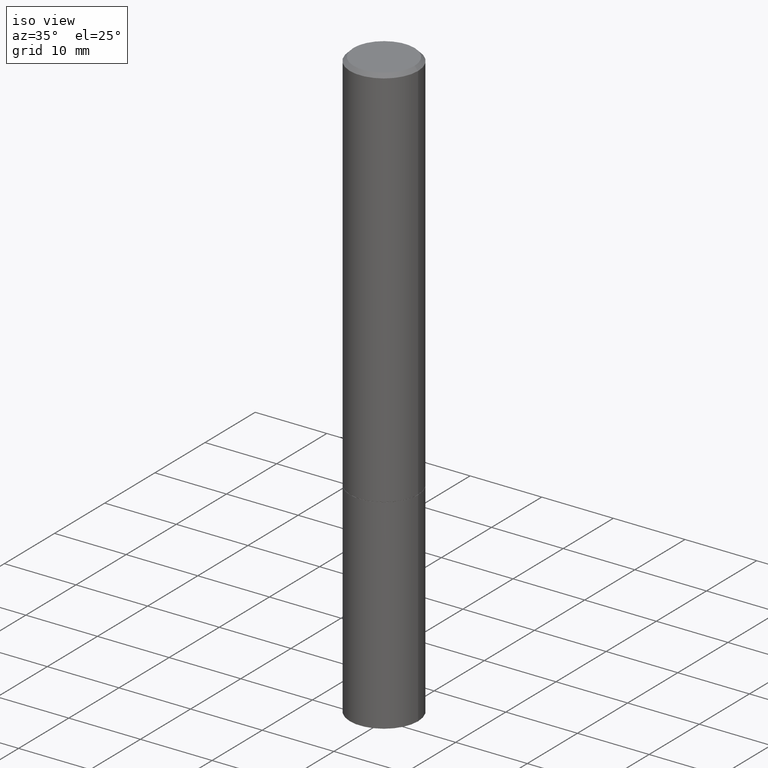
[diagram: clean part render]
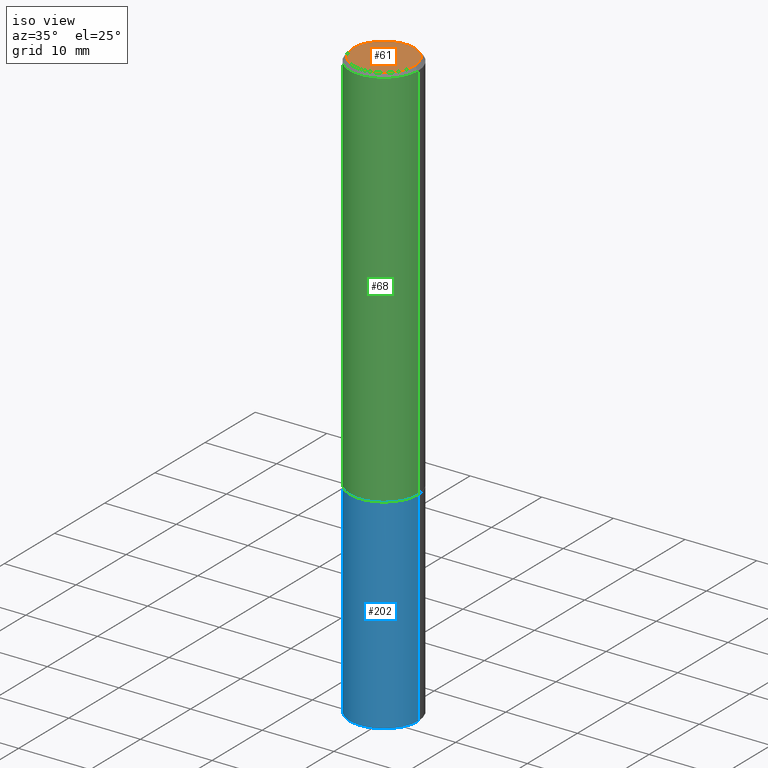
[diagram: same view with three faces highlighted in distinct colors, each labeled with its STEP entity id]
A machine part, iso view with three faces highlighted in distinct colors.
Their STEP definitions:

[orange] entity #61 — the highlighted planar face has unit normal (0, -0, -1).
#15 = VERTEX_POINT ( 'NONE', #319 ) ;
#19 = ORIENTED_EDGE ( 'NONE', *, *, #229, .T. ) ;
#40 = AXIS2_PLACEMENT_3D ( 'NONE', #345, #321, #323 ) ;
#48 = CARTESIAN_POINT ( 'NONE',  ( -1.043851414335219820E-46, 1.490343170380447200E-32, 4.268512490100411279E-18 ) ) ;
#56 = CIRCLE ( 'NONE', #324, 0.1674999999999997602 ) ;
#61 = ADVANCED_FACE ( 'NONE', ( #206 ), #77, .F. ) ;
#77 = PLANE ( 'NONE',  #40 ) ;
#89 = AXIS2_PLACEMENT_3D ( 'NONE', #334, #241, #278 ) ;
#107 = EDGE_CURVE ( 'NONE', #194, #15, #196, .T. ) ;
#123 = DIRECTION ( 'NONE',  ( 1.000000000000000000, -6.982962677686265922E-15, 4.875936752492899929E-29 ) ) ;
#149 = ORIENTED_EDGE ( 'NONE', *, *, #107, .T. ) ;
#194 = VERTEX_POINT ( 'NONE', #311 ) ;
#196 = CIRCLE ( 'NONE', #89, 0.1674999999999997602 ) ;
#206 = FACE_OUTER_BOUND ( 'NONE', #330, .T. ) ;
#229 = EDGE_CURVE ( 'NONE', #15, #194, #56, .T. ) ;
#237 = DIRECTION ( 'NONE',  ( -2.445468806185136597E-29, 3.491481338843145583E-15, 1.000000000000000000 ) ) ;
#241 = DIRECTION ( 'NONE',  ( -2.445468806185136597E-29, 3.491481338843145583E-15, 1.000000000000000000 ) ) ;
#278 = DIRECTION ( 'NONE',  ( 1.000000000000000000, -6.982962677686265922E-15, 4.875936752492899929E-29 ) ) ;
#311 = CARTESIAN_POINT ( 'NONE',  ( 0.1674999999999997602, -1.252653207992876711E-15, 4.268512490108880748E-18 ) ) ;
#319 = CARTESIAN_POINT ( 'NONE',  ( -0.1674999999999997602, 1.204561061900878878E-15, 4.268512490092109750E-18 ) ) ;
#321 = DIRECTION ( 'NONE',  ( 2.438088387897960049E-29, -3.491481338843145188E-15, -1.000000000000000000 ) ) ;
#323 = DIRECTION ( 'NONE',  ( -1.000000000000000000, 6.982962677686265922E-15, -4.876176775795935793E-29 ) ) ;
#324 = AXIS2_PLACEMENT_3D ( 'NONE', #48, #237, #123 ) ;
#330 = EDGE_LOOP ( 'NONE', ( #19, #149 ) ) ;
#334 = CARTESIAN_POINT ( 'NONE',  ( -1.043851414335219820E-46, 1.490343170380447200E-32, 4.268512490100411279E-18 ) ) ;
#345 = CARTESIAN_POINT ( 'NONE',  ( 1.169646248512447820E-15, 0.1674999999999997602, -5.826888680111757675E-16 ) ) ;

[blue] entity #202 — the highlighted cylindrical surface (partial cylindrical patch) has radius 4.7625 mm, axis along (-0, 0, 1).
#1 = DIRECTION ( 'NONE',  ( -2.445468806185136597E-29, 3.491481338843145583E-15, 1.000000000000000000 ) ) ;
#8 = DIRECTION ( 'NONE',  ( 1.000000000000000000, -6.982962677686261189E-15, 0.000000000000000000 ) ) ;
#9 = EDGE_CURVE ( 'NONE', #21, #135, #232, .T. ) ;
#12 = CARTESIAN_POINT ( 'NONE',  ( 5.196621213143415268E-29, -7.419397845041683624E-15, -2.125000000000000000 ) ) ;
#13 = DIRECTION ( 'NONE',  ( -2.445468806185136877E-29, 3.491481338843145188E-15, 1.000000000000000000 ) ) ;
#17 = VERTEX_POINT ( 'NONE', #69 ) ;
#21 = VERTEX_POINT ( 'NONE', #120 ) ;
#28 = CARTESIAN_POINT ( 'NONE',  ( -0.1875000000000000278, -8.051088468590765387E-15, -3.250000000000000000 ) ) ;
#29 = AXIS2_PLACEMENT_3D ( 'NONE', #253, #1, #86 ) ;
#43 = LINE ( 'NONE', #147, #286 ) ;
#52 = ORIENTED_EDGE ( 'NONE', *, *, #74, .T. ) ;
#55 = CYLINDRICAL_SURFACE ( 'NONE', #29, 0.1875000000000000278 ) ;
#59 = DIRECTION ( 'NONE',  ( -2.445468806185136877E-29, 3.491481338843145188E-15, 1.000000000000000000 ) ) ;
#65 = DIRECTION ( 'NONE',  ( 1.000000000000000000, -6.982962677686266711E-15, 0.000000000000000000 ) ) ;
#69 = CARTESIAN_POINT ( 'NONE',  ( 0.1875000000000000278, -1.265661985330639786E-14, -3.250000000000000000 ) ) ;
#70 = CARTESIAN_POINT ( 'NONE',  ( 7.947773620101693940E-29, -1.134731435124022443E-14, -3.250000000000000000 ) ) ;
#74 = EDGE_CURVE ( 'NONE', #17, #135, #43, .T. ) ;
#82 = ORIENTED_EDGE ( 'NONE', *, *, #261, .T. ) ;
#86 = DIRECTION ( 'NONE',  ( 1.000000000000000000, -6.982962677686265922E-15, 4.876176775795935793E-29 ) ) ;
#120 = CARTESIAN_POINT ( 'NONE',  ( -0.1875000000000000278, -8.051088468590765387E-15, -2.125000000000000000 ) ) ;
#134 = VERTEX_POINT ( 'NONE', #28 ) ;
#135 = VERTEX_POINT ( 'NONE', #216 ) ;
#139 = FACE_OUTER_BOUND ( 'NONE', #272, .T. ) ;
#147 = CARTESIAN_POINT ( 'NONE',  ( 0.1875000000000000278, -1.309305502066175008E-15, 9.142831454617381013E-30 ) ) ;
#162 = AXIS2_PLACEMENT_3D ( 'NONE', #70, #291, #8 ) ;
#182 = AXIS2_PLACEMENT_3D ( 'NONE', #12, #208, #65 ) ;
#199 = CARTESIAN_POINT ( 'NONE',  ( -0.1875000000000000278, 1.332267629550188046E-15, -9.223003294227947991E-30 ) ) ;
#202 = ADVANCED_FACE ( 'NONE', ( #139 ), #55, .T. ) ;
#208 = DIRECTION ( 'NONE',  ( -2.445468806185136597E-29, 3.491481338843145583E-15, 1.000000000000000000 ) ) ;
#210 = EDGE_CURVE ( 'NONE', #134, #21, #223, .T. ) ;
#216 = CARTESIAN_POINT ( 'NONE',  ( 0.1875000000000000278, -8.728703347107858632E-15, -2.125000000000000000 ) ) ;
#219 = ORIENTED_EDGE ( 'NONE', *, *, #9, .F. ) ;
#223 = LINE ( 'NONE', #199, #343 ) ;
#232 = CIRCLE ( 'NONE', #182, 0.1875000000000000278 ) ;
#253 = CARTESIAN_POINT ( 'NONE',  ( 0.000000000000000000, 0.000000000000000000, 0.000000000000000000 ) ) ;
#261 = EDGE_CURVE ( 'NONE', #134, #17, #314, .T. ) ;
#272 = EDGE_LOOP ( 'NONE', ( #329, #82, #52, #219 ) ) ;
#286 = VECTOR ( 'NONE', #13, 39.37007874015748143 ) ;
#291 = DIRECTION ( 'NONE',  ( -2.445468806185136597E-29, 3.491481338843145583E-15, 1.000000000000000000 ) ) ;
#314 = CIRCLE ( 'NONE', #162, 0.1875000000000000278 ) ;
#329 = ORIENTED_EDGE ( 'NONE', *, *, #210, .F. ) ;
#343 = VECTOR ( 'NONE', #59, 39.37007874015748143 ) ;

[green] entity #68 — the highlighted cylindrical surface (partial cylindrical patch) has radius 4.7625 mm, axis along (-0, 0, 1).
#2 = CARTESIAN_POINT ( 'NONE',  ( 4.890937612370283668E-31, -6.982962677686305168E-17, -0.02000000000000004205 ) ) ;
#5 = CARTESIAN_POINT ( 'NONE',  ( 5.194175744337229665E-29, -7.415906363702840616E-15, -2.123999999999999666 ) ) ;
#23 = VERTEX_POINT ( 'NONE', #289 ) ;
#30 = CIRCLE ( 'NONE', #226, 0.1875000000000000278 ) ;
#33 = EDGE_CURVE ( 'NONE', #358, #243, #177, .T. ) ;
#36 = CYLINDRICAL_SURFACE ( 'NONE', #104, 0.1874999999999998890 ) ;
#39 = CARTESIAN_POINT ( 'NONE',  ( 0.1875000000000000278, -8.725211865769015625E-15, -2.123999999999999666 ) ) ;
#68 = ADVANCED_FACE ( 'NONE', ( #71 ), #36, .T. ) ;
#71 = FACE_OUTER_BOUND ( 'NONE', #80, .T. ) ;
#73 = DIRECTION ( 'NONE',  ( -2.445468806185136597E-29, 3.491481338843145583E-15, 1.000000000000000000 ) ) ;
#80 = EDGE_LOOP ( 'NONE', ( #305, #130, #190, #103 ) ) ;
#81 = AXIS2_PLACEMENT_3D ( 'NONE', #2, #341, #87 ) ;
#87 = DIRECTION ( 'NONE',  ( 1.000000000000000000, -6.982962677686265133E-15, 0.000000000000000000 ) ) ;
#103 = ORIENTED_EDGE ( 'NONE', *, *, #168, .F. ) ;
#104 = AXIS2_PLACEMENT_3D ( 'NONE', #292, #73, #293 ) ;
#127 = CARTESIAN_POINT ( 'NONE',  ( -0.1874999999999997502, 1.239475875289309935E-15, -0.02000000000000004205 ) ) ;
#130 = ORIENTED_EDGE ( 'NONE', *, *, #366, .T. ) ;
#138 = CARTESIAN_POINT ( 'NONE',  ( -0.1874999999999998890, 1.332267629550187060E-15, -9.223003294227942385E-30 ) ) ;
#145 = VECTOR ( 'NONE', #287, 39.37007874015748143 ) ;
#165 = EDGE_CURVE ( 'NONE', #23, #269, #273, .T. ) ;
#168 = EDGE_CURVE ( 'NONE', #269, #243, #279, .T. ) ;
#174 = CARTESIAN_POINT ( 'NONE',  ( 0.1874999999999998890, -1.309305502066174022E-15, 9.142831454617374006E-30 ) ) ;
#177 = LINE ( 'NONE', #174, #145 ) ;
#190 = ORIENTED_EDGE ( 'NONE', *, *, #33, .T. ) ;
#226 = AXIS2_PLACEMENT_3D ( 'NONE', #5, #239, #288 ) ;
#239 = DIRECTION ( 'NONE',  ( -2.445468806185136597E-29, 3.491481338843145583E-15, 1.000000000000000000 ) ) ;
#243 = VERTEX_POINT ( 'NONE', #258 ) ;
#248 = VECTOR ( 'NONE', #250, 39.37007874015748143 ) ;
#250 = DIRECTION ( 'NONE',  ( -2.445468806185136877E-29, 3.491481338843145188E-15, 1.000000000000000000 ) ) ;
#258 = CARTESIAN_POINT ( 'NONE',  ( 0.1874999999999997502, -1.356173001359023494E-15, -0.02000000000000004205 ) ) ;
#269 = VERTEX_POINT ( 'NONE', #127 ) ;
#273 = LINE ( 'NONE', #138, #248 ) ;
#279 = CIRCLE ( 'NONE', #81, 0.1874999999999997502 ) ;
#287 = DIRECTION ( 'NONE',  ( -2.445468806185136877E-29, 3.491481338843145188E-15, 1.000000000000000000 ) ) ;
#288 = DIRECTION ( 'NONE',  ( 1.000000000000000000, -6.982962677686266711E-15, 0.000000000000000000 ) ) ;
#289 = CARTESIAN_POINT ( 'NONE',  ( -0.1875000000000000278, -2.410600365689662531E-15, -2.123999999999999666 ) ) ;
#292 = CARTESIAN_POINT ( 'NONE',  ( 0.000000000000000000, 0.000000000000000000, 0.000000000000000000 ) ) ;
#293 = DIRECTION ( 'NONE',  ( 1.000000000000000000, -6.982962677686265922E-15, 4.876176775795935793E-29 ) ) ;
#305 = ORIENTED_EDGE ( 'NONE', *, *, #165, .F. ) ;
#341 = DIRECTION ( 'NONE',  ( -2.445468806185136597E-29, 3.491481338843145583E-15, 1.000000000000000000 ) ) ;
#358 = VERTEX_POINT ( 'NONE', #39 ) ;
#366 = EDGE_CURVE ( 'NONE', #23, #358, #30, .T. ) ;